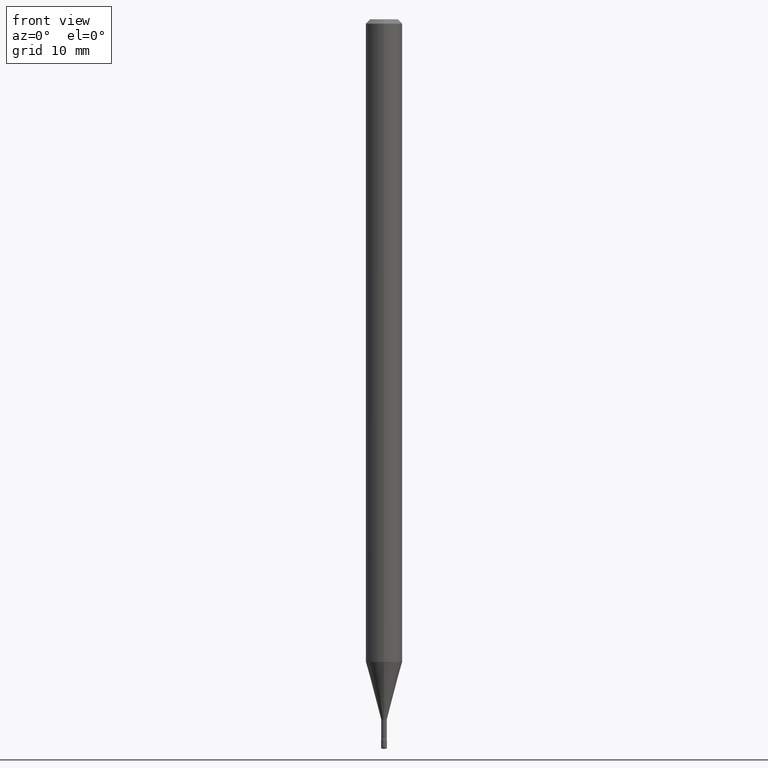
[diagram: clean part render]
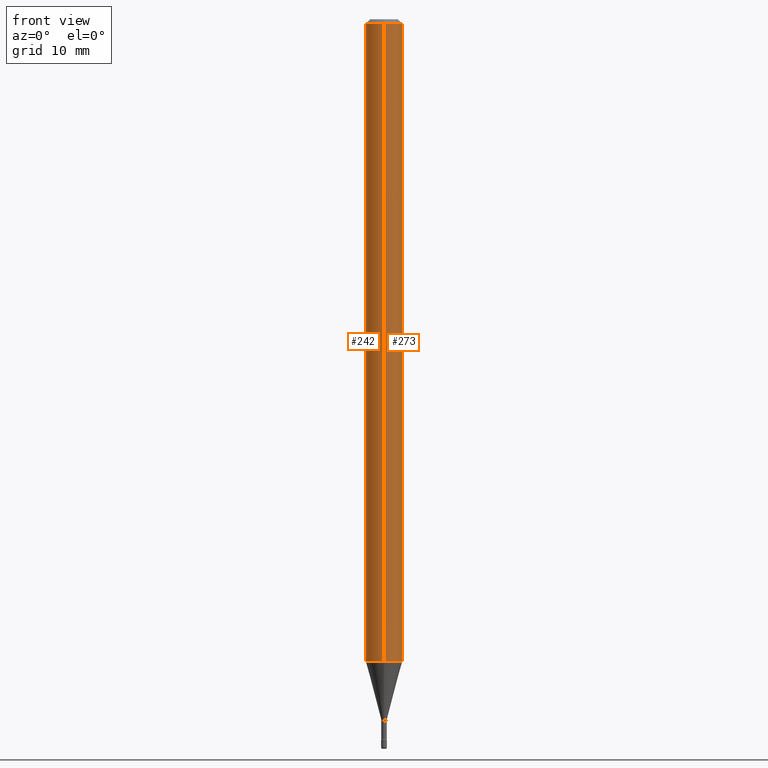
[diagram: same view with one multi-face feature highlighted, each face labeled with its STEP entity id]
A machine part, front view. The highlighted faces form ONE feature: a constant-radius fillet chain: 2 tangent blend faces with common blend radius 1.5875 mm. The faces share edges in the B-rep.
Their STEP definitions:
[1] entity #273 (Cylinder):
#14 = VECTOR ( 'NONE', #412, 39.37007874015748143 ) ;
#31 = AXIS2_PLACEMENT_3D ( 'NONE', #446, #141, #395 ) ;
#56 = LINE ( 'NONE', #542, #14 ) ;
#63 = VERTEX_POINT ( 'NONE', #572 ) ;
#93 = CARTESIAN_POINT ( 'NONE',  ( 4.440892098500625669E-16, 0.06250000000000000000, 2.598590258985031286E-16 ) ) ;
#129 = DIRECTION ( 'NONE',  ( -6.982962677686265922E-15, -1.000000000000000000, 3.491429967883886954E-15 ) ) ;
#132 = CARTESIAN_POINT ( 'NONE',  ( -4.364351673553912750E-16, -0.06250000000000005551, -0.01499999999999981036 ) ) ;
#135 = EDGE_CURVE ( 'NONE', #209, #333, #460, .T. ) ;
#136 = DIRECTION ( 'NONE',  ( -2.445504678334258612E-29, 3.491429967883887349E-15, 1.000000000000000000 ) ) ;
#141 = DIRECTION ( 'NONE',  ( -2.445504678334258331E-29, 3.491429967883887349E-15, 1.000000000000000000 ) ) ;
#143 = CYLINDRICAL_SURFACE ( 'NONE', #527, 0.06250000000000000000 ) ;
#149 = EDGE_CURVE ( 'NONE', #342, #63, #387, .T. ) ;
#169 = ORIENTED_EDGE ( 'NONE', *, *, #135, .T. ) ;
#174 = EDGE_CURVE ( 'NONE', #209, #342, #56, .T. ) ;
#194 = VECTOR ( 'NONE', #136, 39.37007874015748143 ) ;
#209 = VERTEX_POINT ( 'NONE', #405 ) ;
#212 = ORIENTED_EDGE ( 'NONE', *, *, #513, .T. ) ;
#232 = CARTESIAN_POINT ( 'NONE',  ( 4.440892098501162587E-16, 0.06249999999999230477, -2.201828102118093877 ) ) ;
#273 = ADVANCED_FACE ( 'NONE', ( #536 ), #143, .T. ) ;
#291 = LINE ( 'NONE', #93, #194 ) ;
#333 = VERTEX_POINT ( 'NONE', #232 ) ;
#342 = VERTEX_POINT ( 'NONE', #132 ) ;
#343 = CARTESIAN_POINT ( 'NONE',  ( -1.169113584055446105E-44, 1.669184350826100908E-30, 4.780733988912460139E-16 ) ) ;
#372 = ORIENTED_EDGE ( 'NONE', *, *, #174, .F. ) ;
#387 = CIRCLE ( 'NONE', #508, 0.06250000000000000000 ) ;
#395 = DIRECTION ( 'NONE',  ( -6.982962677686265922E-15, -1.000000000000000000, 4.370956789862821150E-15 ) ) ;
#405 = CARTESIAN_POINT ( 'NONE',  ( -4.364351673553378297E-16, -0.06250000000000768829, -2.201828102118092989 ) ) ;
#410 = DIRECTION ( 'NONE',  ( -2.445504678334258331E-29, 3.491429967883887349E-15, 1.000000000000000000 ) ) ;
#412 = DIRECTION ( 'NONE',  ( -2.445504678334258612E-29, 3.491429967883887349E-15, 1.000000000000000000 ) ) ;
#446 = CARTESIAN_POINT ( 'NONE',  ( 5.384580924617639172E-29, -7.687528619864014535E-15, -2.201828102118093433 ) ) ;
#456 = DIRECTION ( 'NONE',  ( -6.982962677686265922E-15, -1.000000000000000000, 3.483106191921935554E-15 ) ) ;
#460 = CIRCLE ( 'NONE', #31, 0.06250000000000000000 ) ;
#486 = ORIENTED_EDGE ( 'NONE', *, *, #149, .F. ) ;
#498 = CARTESIAN_POINT ( 'NONE',  ( 3.668257017501394101E-31, -5.237144951825841500E-17, -0.01500000000000002720 ) ) ;
#508 = AXIS2_PLACEMENT_3D ( 'NONE', #498, #410, #456 ) ;
#513 = EDGE_CURVE ( 'NONE', #333, #63, #291, .T. ) ;
#515 = EDGE_LOOP ( 'NONE', ( #169, #212, #486, #372 ) ) ;
#523 = DIRECTION ( 'NONE',  ( -2.445504678334258331E-29, 3.491429967883887349E-15, 1.000000000000000000 ) ) ;
#527 = AXIS2_PLACEMENT_3D ( 'NONE', #343, #523, #129 ) ;
#536 = FACE_OUTER_BOUND ( 'NONE', #515, .T. ) ;
#542 = CARTESIAN_POINT ( 'NONE',  ( -4.364351673553916201E-16, -0.06250000000000000000, 6.962877718839889979E-16 ) ) ;
#572 = CARTESIAN_POINT ( 'NONE',  ( 4.440892098501167517E-16, 0.06249999999999995143, -0.01500000000000024578 ) ) ;
[2] entity #242 (Cylinder):
#2 = ORIENTED_EDGE ( 'NONE', *, *, #109, .T. ) ;
#4 = AXIS2_PLACEMENT_3D ( 'NONE', #223, #358, #309 ) ;
#14 = VECTOR ( 'NONE', #412, 39.37007874015748143 ) ;
#56 = LINE ( 'NONE', #542, #14 ) ;
#63 = VERTEX_POINT ( 'NONE', #572 ) ;
#93 = CARTESIAN_POINT ( 'NONE',  ( 4.440892098500625669E-16, 0.06250000000000000000, 2.598590258985031286E-16 ) ) ;
#96 = DIRECTION ( 'NONE',  ( -2.445504678334258331E-29, 3.491429967883887349E-15, 1.000000000000000000 ) ) ;
#109 = EDGE_CURVE ( 'NONE', #333, #209, #176, .T. ) ;
#124 = CIRCLE ( 'NONE', #348, 0.06250000000000000000 ) ;
#132 = CARTESIAN_POINT ( 'NONE',  ( -4.364351673553912750E-16, -0.06250000000000005551, -0.01499999999999981036 ) ) ;
#136 = DIRECTION ( 'NONE',  ( -2.445504678334258612E-29, 3.491429967883887349E-15, 1.000000000000000000 ) ) ;
#152 = DIRECTION ( 'NONE',  ( -6.982962677686265922E-15, -1.000000000000000000, 3.491429967883886954E-15 ) ) ;
#174 = EDGE_CURVE ( 'NONE', #209, #342, #56, .T. ) ;
#176 = CIRCLE ( 'NONE', #4, 0.06250000000000000000 ) ;
#194 = VECTOR ( 'NONE', #136, 39.37007874015748143 ) ;
#209 = VERTEX_POINT ( 'NONE', #405 ) ;
#213 = DIRECTION ( 'NONE',  ( -6.982962677686265922E-15, -1.000000000000000000, 3.483106191921935554E-15 ) ) ;
#223 = CARTESIAN_POINT ( 'NONE',  ( 5.384580924617639172E-29, -7.687528619864014535E-15, -2.201828102118093433 ) ) ;
#232 = CARTESIAN_POINT ( 'NONE',  ( 4.440892098501162587E-16, 0.06249999999999230477, -2.201828102118093877 ) ) ;
#242 = ADVANCED_FACE ( 'NONE', ( #445 ), #399, .T. ) ;
#291 = LINE ( 'NONE', #93, #194 ) ;
#304 = ORIENTED_EDGE ( 'NONE', *, *, #518, .F. ) ;
#309 = DIRECTION ( 'NONE',  ( -6.982962677686265922E-15, -1.000000000000000000, 4.370956789862821150E-15 ) ) ;
#333 = VERTEX_POINT ( 'NONE', #232 ) ;
#342 = VERTEX_POINT ( 'NONE', #132 ) ;
#348 = AXIS2_PLACEMENT_3D ( 'NONE', #526, #96, #213 ) ;
#357 = CARTESIAN_POINT ( 'NONE',  ( -1.169113584055446105E-44, 1.669184350826100908E-30, 4.780733988912460139E-16 ) ) ;
#358 = DIRECTION ( 'NONE',  ( -2.445504678334258331E-29, 3.491429967883887349E-15, 1.000000000000000000 ) ) ;
#377 = ORIENTED_EDGE ( 'NONE', *, *, #174, .T. ) ;
#399 = CYLINDRICAL_SURFACE ( 'NONE', #550, 0.06250000000000000000 ) ;
#405 = CARTESIAN_POINT ( 'NONE',  ( -4.364351673553378297E-16, -0.06250000000000768829, -2.201828102118092989 ) ) ;
#412 = DIRECTION ( 'NONE',  ( -2.445504678334258612E-29, 3.491429967883887349E-15, 1.000000000000000000 ) ) ;
#424 = ORIENTED_EDGE ( 'NONE', *, *, #513, .F. ) ;
#445 = FACE_OUTER_BOUND ( 'NONE', #448, .T. ) ;
#448 = EDGE_LOOP ( 'NONE', ( #424, #2, #377, #304 ) ) ;
#513 = EDGE_CURVE ( 'NONE', #333, #63, #291, .T. ) ;
#518 = EDGE_CURVE ( 'NONE', #63, #342, #124, .T. ) ;
#526 = CARTESIAN_POINT ( 'NONE',  ( 3.668257017501394101E-31, -5.237144951825841500E-17, -0.01500000000000002720 ) ) ;
#542 = CARTESIAN_POINT ( 'NONE',  ( -4.364351673553916201E-16, -0.06250000000000000000, 6.962877718839889979E-16 ) ) ;
#544 = DIRECTION ( 'NONE',  ( -2.445504678334258331E-29, 3.491429967883887349E-15, 1.000000000000000000 ) ) ;
#550 = AXIS2_PLACEMENT_3D ( 'NONE', #357, #544, #152 ) ;
#572 = CARTESIAN_POINT ( 'NONE',  ( 4.440892098501167517E-16, 0.06249999999999995143, -0.01500000000000024578 ) ) ;